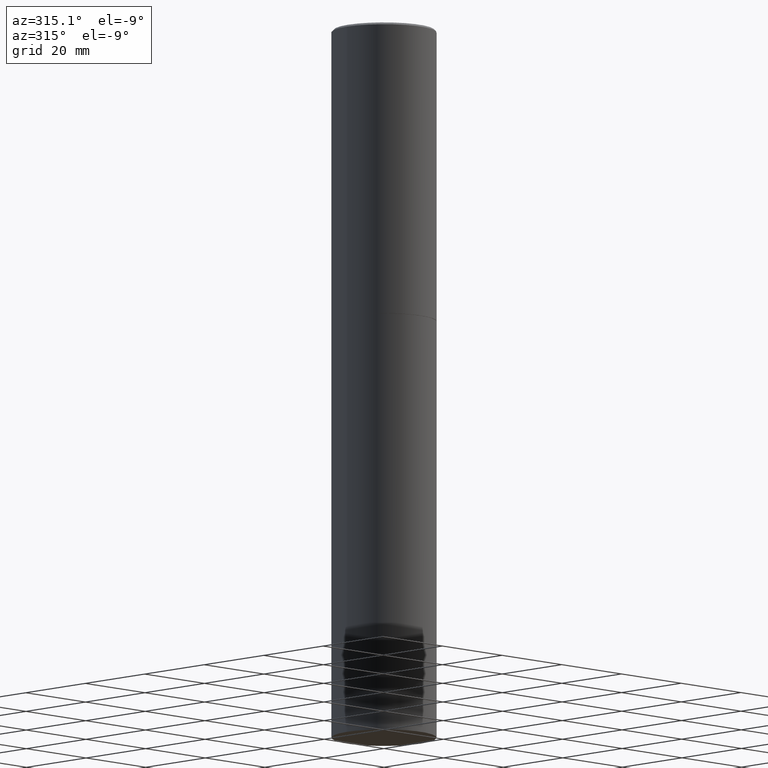
[diagram: clean part render]
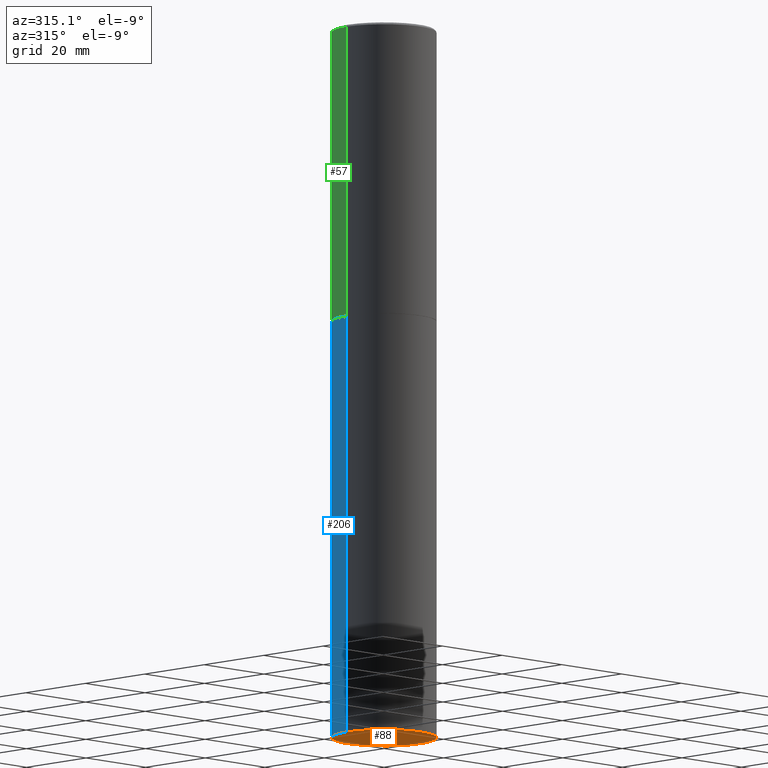
[diagram: same view with three faces highlighted in distinct colors, each labeled with its STEP entity id]
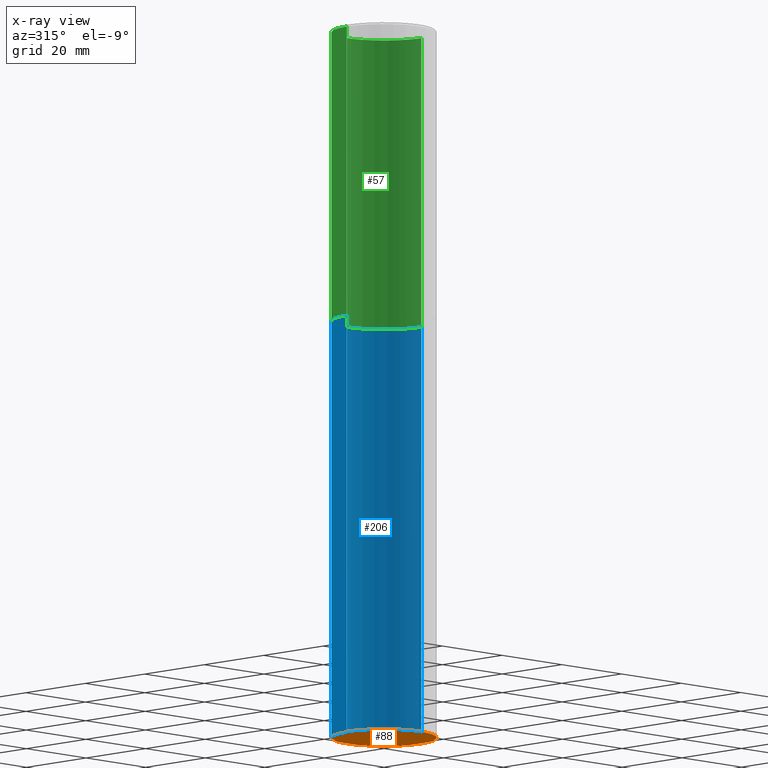
[diagram: x-ray of the same camera — body ghosted, the three highlighted faces saturated]
A machine part, auxiliary view with three faces highlighted in distinct colors.
The next image is the same camera in x-ray (body ghosted, the three faces saturated) — at least one of them is partly hidden behind the body in this view.
Their STEP definitions:

[orange] entity #88 — the highlighted planar face has unit normal (0, -0, -1).
#16 = CARTESIAN_POINT ( 'NONE',  ( 0.4921499999999999764, -2.680480053456658516E-14, -6.692899999999999849 ) ) ;
#26 = EDGE_CURVE ( 'NONE', #77, #338, #210, .T. ) ;
#30 = DIRECTION ( 'NONE',  ( -2.445468806185136597E-29, 3.491481338843145583E-15, 1.000000000000000000 ) ) ;
#52 = DIRECTION ( 'NONE',  ( 1.000000000000000000, -6.982962677686265922E-15, 0.000000000000000000 ) ) ;
#70 = DIRECTION ( 'NONE',  ( 1.000000000000000000, -6.982962677686265922E-15, 0.000000000000000000 ) ) ;
#77 = VERTEX_POINT ( 'NONE', #16 ) ;
#85 = AXIS2_PLACEMENT_3D ( 'NONE', #323, #352, #99 ) ;
#88 = ADVANCED_FACE ( 'NONE', ( #123 ), #351, .T. ) ;
#92 = DIRECTION ( 'NONE',  ( -2.445468806185136597E-29, 3.491481338843145583E-15, 1.000000000000000000 ) ) ;
#99 = DIRECTION ( 'NONE',  ( -1.000000000000000000, 6.982962677686265922E-15, -4.876176775795935793E-29 ) ) ;
#105 = CARTESIAN_POINT ( 'NONE',  ( -0.4921499999999999764, -1.299821836318722399E-14, -6.692899999999999849 ) ) ;
#109 = AXIS2_PLACEMENT_3D ( 'NONE', #234, #92, #70 ) ;
#123 = FACE_OUTER_BOUND ( 'NONE', #332, .T. ) ;
#191 = CIRCLE ( 'NONE', #195, 0.4921499999999999764 ) ;
#195 = AXIS2_PLACEMENT_3D ( 'NONE', #220, #30, #52 ) ;
#210 = CIRCLE ( 'NONE', #109, 0.4921499999999999764 ) ;
#215 = ORIENTED_EDGE ( 'NONE', *, *, #26, .F. ) ;
#220 = CARTESIAN_POINT ( 'NONE',  ( 1.636727817291649966E-28, -2.336813545274328780E-14, -6.692899999999999849 ) ) ;
#234 = CARTESIAN_POINT ( 'NONE',  ( 1.636727817291649966E-28, -2.336813545274328780E-14, -6.692899999999999849 ) ) ;
#275 = EDGE_CURVE ( 'NONE', #338, #77, #191, .T. ) ;
#323 = CARTESIAN_POINT ( 'NONE',  ( 3.436665081823459465E-15, 0.4921499999999766062, -6.692900000000002514 ) ) ;
#332 = EDGE_LOOP ( 'NONE', ( #215, #341 ) ) ;
#338 = VERTEX_POINT ( 'NONE', #105 ) ;
#341 = ORIENTED_EDGE ( 'NONE', *, *, #275, .F. ) ;
#351 = PLANE ( 'NONE',  #85 ) ;
#352 = DIRECTION ( 'NONE',  ( 2.438088387897960049E-29, -3.491481338843145188E-15, -1.000000000000000000 ) ) ;

[blue] entity #206 — the highlighted cylindrical surface (partial cylindrical patch) has radius 12.5006 mm, axis along (-0, 0, 1).
#2 = DIRECTION ( 'NONE',  ( 1.000000000000000000, -6.982962677686265922E-15, 4.876176775795935793E-29 ) ) ;
#4 = VECTOR ( 'NONE', #146, 39.37007874015748143 ) ;
#16 = CARTESIAN_POINT ( 'NONE',  ( 0.4921499999999999764, -2.680480053456658516E-14, -6.692899999999999849 ) ) ;
#26 = EDGE_CURVE ( 'NONE', #77, #338, #210, .T. ) ;
#34 = DIRECTION ( 'NONE',  ( -2.445468806185136597E-29, 3.491481338843145583E-15, 1.000000000000000000 ) ) ;
#40 = CYLINDRICAL_SURFACE ( 'NONE', #50, 0.4921499999999999764 ) ;
#50 = AXIS2_PLACEMENT_3D ( 'NONE', #266, #319, #2 ) ;
#65 = CIRCLE ( 'NONE', #90, 0.4921499999999999764 ) ;
#70 = DIRECTION ( 'NONE',  ( 1.000000000000000000, -6.982962677686265922E-15, 0.000000000000000000 ) ) ;
#77 = VERTEX_POINT ( 'NONE', #16 ) ;
#90 = AXIS2_PLACEMENT_3D ( 'NONE', #140, #34, #143 ) ;
#92 = DIRECTION ( 'NONE',  ( -2.445468806185136597E-29, 3.491481338843145583E-15, 1.000000000000000000 ) ) ;
#103 = EDGE_CURVE ( 'NONE', #77, #282, #214, .T. ) ;
#104 = ORIENTED_EDGE ( 'NONE', *, *, #26, .T. ) ;
#105 = CARTESIAN_POINT ( 'NONE',  ( -0.4921499999999999764, -1.299821836318722399E-14, -6.692899999999999849 ) ) ;
#109 = AXIS2_PLACEMENT_3D ( 'NONE', #234, #92, #70 ) ;
#110 = VERTEX_POINT ( 'NONE', #305 ) ;
#112 = FACE_OUTER_BOUND ( 'NONE', #278, .T. ) ;
#120 = LINE ( 'NONE', #174, #4 ) ;
#130 = ORIENTED_EDGE ( 'NONE', *, *, #193, .F. ) ;
#140 = CARTESIAN_POINT ( 'NONE',  ( 6.739467482965618232E-29, -9.622173421717824390E-15, -2.755900000000000016 ) ) ;
#143 = DIRECTION ( 'NONE',  ( 1.000000000000000000, -6.982962677686265922E-15, 0.000000000000000000 ) ) ;
#146 = DIRECTION ( 'NONE',  ( -2.445468806185136877E-29, 3.491481338843145188E-15, 1.000000000000000000 ) ) ;
#147 = ORIENTED_EDGE ( 'NONE', *, *, #169, .T. ) ;
#169 = EDGE_CURVE ( 'NONE', #338, #110, #120, .T. ) ;
#171 = VECTOR ( 'NONE', #336, 39.37007874015748143 ) ;
#174 = CARTESIAN_POINT ( 'NONE',  ( -0.4921499999999999764, 3.496936074043332897E-15, -2.420853904668951509E-29 ) ) ;
#193 = EDGE_CURVE ( 'NONE', #282, #110, #65, .T. ) ;
#206 = ADVANCED_FACE ( 'NONE', ( #112 ), #40, .T. ) ;
#210 = CIRCLE ( 'NONE', #109, 0.4921499999999999764 ) ;
#214 = LINE ( 'NONE', #340, #171 ) ;
#234 = CARTESIAN_POINT ( 'NONE',  ( 1.636727817291649966E-28, -2.336813545274328780E-14, -6.692899999999999849 ) ) ;
#247 = ORIENTED_EDGE ( 'NONE', *, *, #103, .F. ) ;
#266 = CARTESIAN_POINT ( 'NONE',  ( 0.000000000000000000, 0.000000000000000000, 0.000000000000000000 ) ) ;
#278 = EDGE_LOOP ( 'NONE', ( #104, #147, #130, #247 ) ) ;
#282 = VERTEX_POINT ( 'NONE', #329 ) ;
#305 = CARTESIAN_POINT ( 'NONE',  ( -0.4921499999999999764, -1.299821836318722399E-14, -2.755900000000000016 ) ) ;
#319 = DIRECTION ( 'NONE',  ( -2.445468806185136597E-29, 3.491481338843145583E-15, 1.000000000000000000 ) ) ;
#329 = CARTESIAN_POINT ( 'NONE',  ( 0.4921499999999999764, -1.305883850354112017E-14, -2.755900000000000016 ) ) ;
#336 = DIRECTION ( 'NONE',  ( -2.445468806185136877E-29, 3.491481338843145188E-15, 1.000000000000000000 ) ) ;
#338 = VERTEX_POINT ( 'NONE', #105 ) ;
#340 = CARTESIAN_POINT ( 'NONE',  ( 0.4921499999999999764, -3.436665081823295777E-15, 2.399810400207969603E-29 ) ) ;

[green] entity #57 — the highlighted cylindrical surface (partial cylindrical patch) has radius 12.5006 mm, axis along (-0, 0, 1).
#17 = VERTEX_POINT ( 'NONE', #343 ) ;
#18 = EDGE_LOOP ( 'NONE', ( #276, #35, #357, #208 ) ) ;
#19 = DIRECTION ( 'NONE',  ( -2.445468806185136597E-29, 3.491481338843145583E-15, 1.000000000000000000 ) ) ;
#35 = ORIENTED_EDGE ( 'NONE', *, *, #82, .T. ) ;
#36 = VECTOR ( 'NONE', #95, 39.37007874015748143 ) ;
#39 = AXIS2_PLACEMENT_3D ( 'NONE', #133, #284, #78 ) ;
#43 = CARTESIAN_POINT ( 'NONE',  ( 0.4921499999999998098, -3.436665081823294593E-15, 2.399810400207968762E-29 ) ) ;
#57 = ADVANCED_FACE ( 'NONE', ( #297 ), #235, .T. ) ;
#62 = DIRECTION ( 'NONE',  ( -2.445468806185136877E-29, 3.491481338843145188E-15, 1.000000000000000000 ) ) ;
#78 = DIRECTION ( 'NONE',  ( 1.000000000000000000, -6.982962677686265922E-15, 0.000000000000000000 ) ) ;
#82 = EDGE_CURVE ( 'NONE', #17, #160, #127, .T. ) ;
#95 = DIRECTION ( 'NONE',  ( -2.445468806185136877E-29, 3.491481338843145188E-15, 1.000000000000000000 ) ) ;
#108 = EDGE_CURVE ( 'NONE', #231, #160, #152, .T. ) ;
#111 = CARTESIAN_POINT ( 'NONE',  ( 0.4921499999999999764, -1.305534702220227716E-14, -2.754900000000000126 ) ) ;
#118 = VERTEX_POINT ( 'NONE', #111 ) ;
#127 = LINE ( 'NONE', #267, #36 ) ;
#133 = CARTESIAN_POINT ( 'NONE',  ( 4.890937612370296805E-31, -6.982962677686323656E-17, -0.02000000000000009409 ) ) ;
#152 = CIRCLE ( 'NONE', #39, 0.4921499999999996988 ) ;
#155 = CARTESIAN_POINT ( 'NONE',  ( 6.737022014159432629E-29, -9.618681940378981383E-15, -2.754900000000000126 ) ) ;
#160 = VERTEX_POINT ( 'NONE', #310 ) ;
#166 = CARTESIAN_POINT ( 'NONE',  ( 0.4921499999999996988, -3.446223716380120377E-15, -0.02000000000000009409 ) ) ;
#184 = AXIS2_PLACEMENT_3D ( 'NONE', #201, #272, #330 ) ;
#201 = CARTESIAN_POINT ( 'NONE',  ( 0.000000000000000000, 0.000000000000000000, 0.000000000000000000 ) ) ;
#208 = ORIENTED_EDGE ( 'NONE', *, *, #225, .F. ) ;
#225 = EDGE_CURVE ( 'NONE', #118, #231, #268, .T. ) ;
#231 = VERTEX_POINT ( 'NONE', #166 ) ;
#235 = CYLINDRICAL_SURFACE ( 'NONE', #184, 0.4921499999999998098 ) ;
#243 = DIRECTION ( 'NONE',  ( 1.000000000000000000, -6.982962677686265922E-15, 0.000000000000000000 ) ) ;
#253 = VECTOR ( 'NONE', #62, 39.37007874015748143 ) ;
#264 = EDGE_CURVE ( 'NONE', #118, #17, #350, .T. ) ;
#267 = CARTESIAN_POINT ( 'NONE',  ( -0.4921499999999998098, 3.496936074043331714E-15, -2.420853904668950949E-29 ) ) ;
#268 = LINE ( 'NONE', #43, #253 ) ;
#272 = DIRECTION ( 'NONE',  ( -2.445468806185136597E-29, 3.491481338843145583E-15, 1.000000000000000000 ) ) ;
#276 = ORIENTED_EDGE ( 'NONE', *, *, #264, .T. ) ;
#284 = DIRECTION ( 'NONE',  ( -2.445468806185136597E-29, 3.491481338843145583E-15, 1.000000000000000000 ) ) ;
#297 = FACE_OUTER_BOUND ( 'NONE', #18, .T. ) ;
#310 = CARTESIAN_POINT ( 'NONE',  ( -0.4921499999999996988, 3.366835455046430506E-15, -0.02000000000000009409 ) ) ;
#330 = DIRECTION ( 'NONE',  ( 1.000000000000000000, -6.982962677686265922E-15, 4.876176775795935793E-29 ) ) ;
#343 = CARTESIAN_POINT ( 'NONE',  ( -0.4921499999999999764, -1.347319709534588852E-15, -2.754900000000000126 ) ) ;
#350 = CIRCLE ( 'NONE', #355, 0.4921499999999999764 ) ;
#355 = AXIS2_PLACEMENT_3D ( 'NONE', #155, #19, #243 ) ;
#357 = ORIENTED_EDGE ( 'NONE', *, *, #108, .F. ) ;